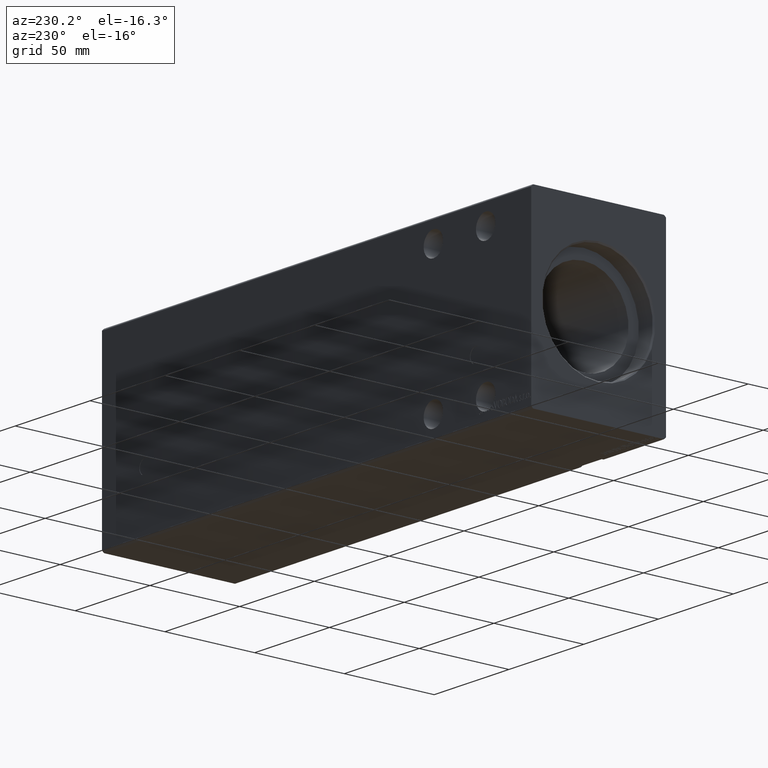
[diagram: clean part render]
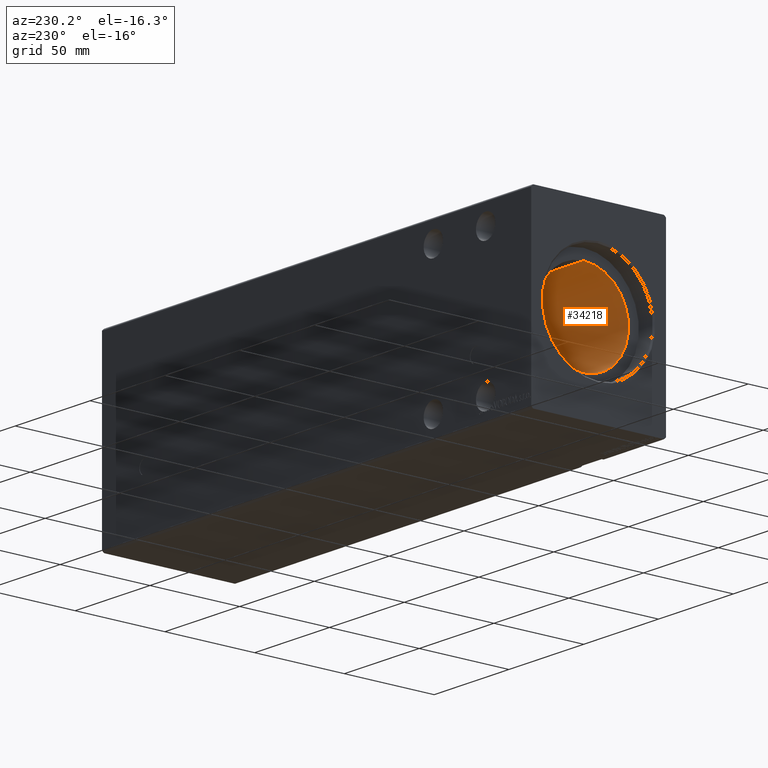
[diagram: same view with one face highlighted and labeled with its STEP entity id]
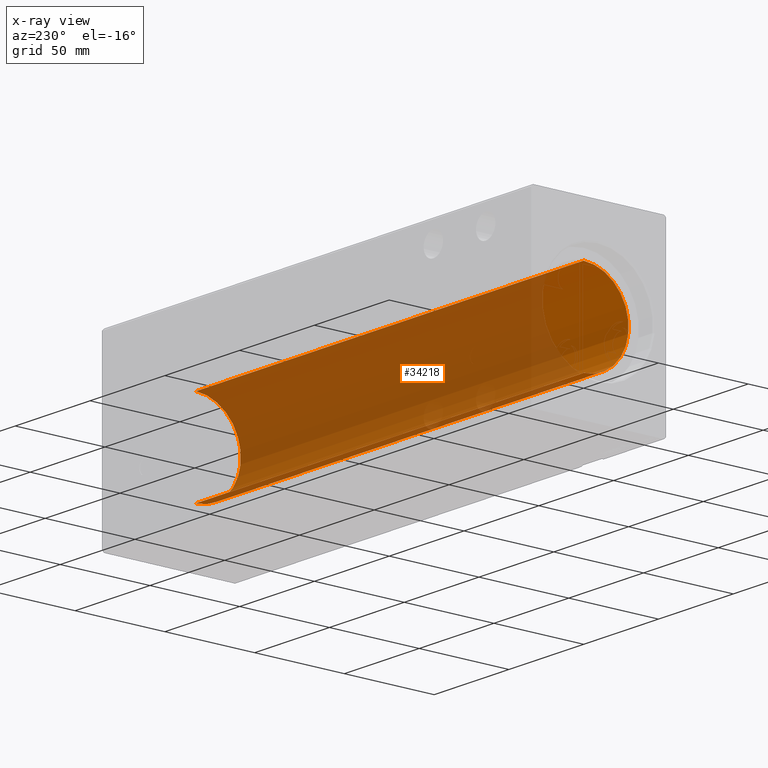
[diagram: x-ray of the same camera — body ghosted, the highlighted face saturated]
A machine part, auxiliary view. The second image highlights one B-rep face of the part: STEP entity #34218.
The next image is the same camera in x-ray: the body ghosted, the highlighted face saturated — about 84% of this face is hidden behind the body in this view.
In plain terms, the highlighted cylindrical surface (partial cylindrical patch) has radius 25 mm, axis along (-1, -0, -0).
Its self-contained STEP definition (entity closure, byte-faithful):
#130 = CARTESIAN_POINT ( 'NONE',  ( 10.00000000000000888, 3.061616997868383043E-15, -25.00000000000000000 ) ) ;
#724 = LINE ( 'NONE', #28929, #4228 ) ;
#947 = ORIENTED_EDGE ( 'NONE', *, *, #4836, .F. ) ;
#1282 = CARTESIAN_POINT ( 'NONE',  ( 269.1999999999999886, 0.000000000000000000, 0.000000000000000000 ) ) ;
#4228 = VECTOR ( 'NONE', #17177, 1000.000000000000000 ) ;
#4836 = EDGE_CURVE ( 'NONE', #9763, #34656, #34311, .T. ) ;
#6203 = EDGE_CURVE ( 'NONE', #34656, #28161, #32032, .T. ) ;
#6538 = CARTESIAN_POINT ( 'NONE',  ( 10.00000000000000888, 0.000000000000000000, 0.000000000000000000 ) ) ;
#6654 = CYLINDRICAL_SURFACE ( 'NONE', #18272, 25.00000000000000000 ) ;
#7260 = DIRECTION ( 'NONE',  ( -1.000000000000000000, -0.000000000000000000, -0.000000000000000000 ) ) ;
#8232 = VERTEX_POINT ( 'NONE', #130 ) ;
#9341 = VECTOR ( 'NONE', #10199, 1000.000000000000000 ) ;
#9721 = EDGE_CURVE ( 'NONE', #8232, #28161, #35073, .T. ) ;
#9763 = VERTEX_POINT ( 'NONE', #25071 ) ;
#10197 = ORIENTED_EDGE ( 'NONE', *, *, #6203, .F. ) ;
#10199 = DIRECTION ( 'NONE',  ( -1.000000000000000000, -0.000000000000000000, -0.000000000000000000 ) ) ;
#10757 = DIRECTION ( 'NONE',  ( 0.000000000000000000, 0.000000000000000000, 1.000000000000000000 ) ) ;
#12515 = DIRECTION ( 'NONE',  ( -1.000000000000000000, 0.000000000000000000, 0.000000000000000000 ) ) ;
#13441 = FACE_OUTER_BOUND ( 'NONE', #33854, .T. ) ;
#15770 = CARTESIAN_POINT ( 'NONE',  ( 269.1999999999999886, 0.000000000000000000, 25.00000000000000000 ) ) ;
#16997 = EDGE_CURVE ( 'NONE', #9763, #8232, #724, .T. ) ;
#17177 = DIRECTION ( 'NONE',  ( -1.000000000000000000, -0.000000000000000000, -0.000000000000000000 ) ) ;
#18272 = AXIS2_PLACEMENT_3D ( 'NONE', #1282, #7260, #10757 ) ;
#25071 = CARTESIAN_POINT ( 'NONE',  ( 269.1999999999999886, 3.061616997868383043E-15, -25.00000000000000000 ) ) ;
#26260 = CARTESIAN_POINT ( 'NONE',  ( 10.00000000000000888, 0.000000000000000000, 25.00000000000000000 ) ) ;
#26459 = CARTESIAN_POINT ( 'NONE',  ( 269.1999999999999886, 0.000000000000000000, 25.00000000000000000 ) ) ;
#27150 = CARTESIAN_POINT ( 'NONE',  ( 269.1999999999999886, 0.000000000000000000, 0.000000000000000000 ) ) ;
#28161 = VERTEX_POINT ( 'NONE', #26260 ) ;
#28929 = CARTESIAN_POINT ( 'NONE',  ( 269.1999999999999886, 3.061616997868383043E-15, -25.00000000000000000 ) ) ;
#32032 = LINE ( 'NONE', #15770, #9341 ) ;
#33784 = AXIS2_PLACEMENT_3D ( 'NONE', #6538, #12515, #37852 ) ;
#33854 = EDGE_LOOP ( 'NONE', ( #947, #34450, #37049, #10197 ) ) ;
#34218 = ADVANCED_FACE ( 'NONE', ( #13441 ), #6654, .F. ) ;
#34311 = CIRCLE ( 'NONE', #35635, 25.00000000000000000 ) ;
#34450 = ORIENTED_EDGE ( 'NONE', *, *, #16997, .T. ) ;
#34656 = VERTEX_POINT ( 'NONE', #26459 ) ;
#35073 = CIRCLE ( 'NONE', #33784, 25.00000000000000000 ) ;
#35635 = AXIS2_PLACEMENT_3D ( 'NONE', #27150, #39535, #36653 ) ;
#36653 = DIRECTION ( 'NONE',  ( 0.000000000000000000, 0.000000000000000000, 1.000000000000000000 ) ) ;
#37049 = ORIENTED_EDGE ( 'NONE', *, *, #9721, .T. ) ;
#37852 = DIRECTION ( 'NONE',  ( 0.000000000000000000, 0.000000000000000000, 1.000000000000000000 ) ) ;
#39535 = DIRECTION ( 'NONE',  ( -1.000000000000000000, 0.000000000000000000, 0.000000000000000000 ) ) ;